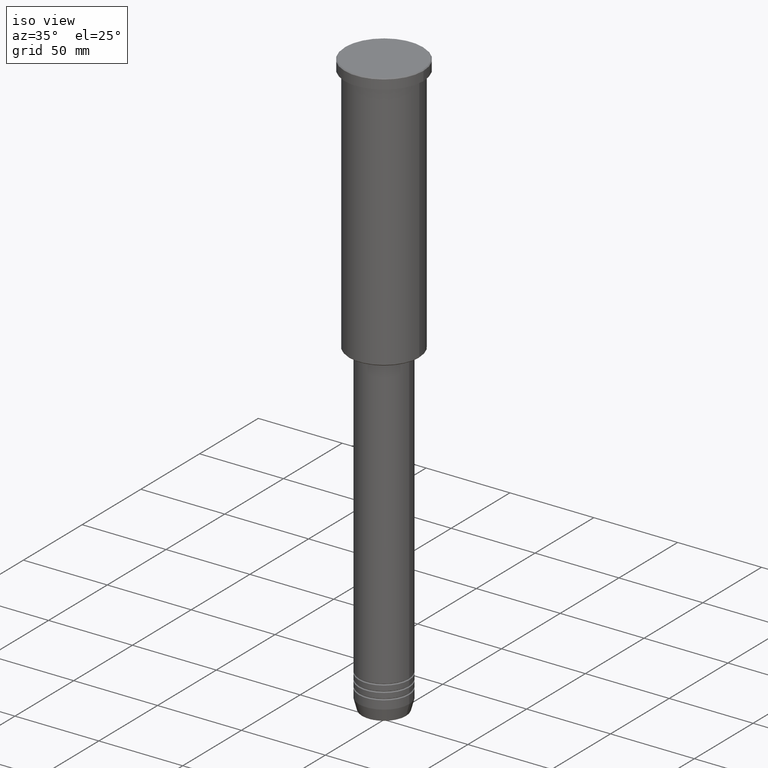
[diagram: clean part render]
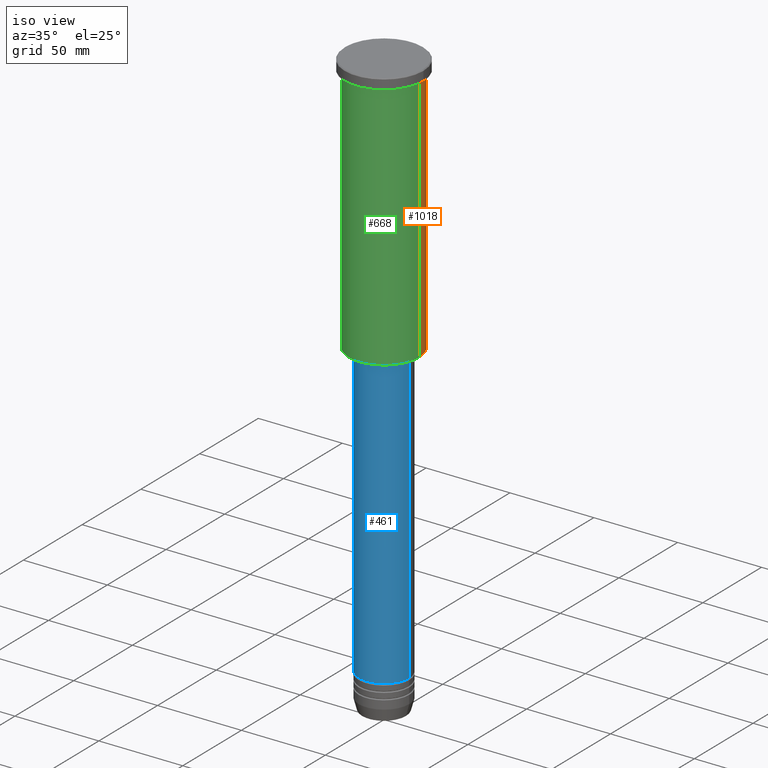
[diagram: same view with three faces highlighted in distinct colors, each labeled with its STEP entity id]
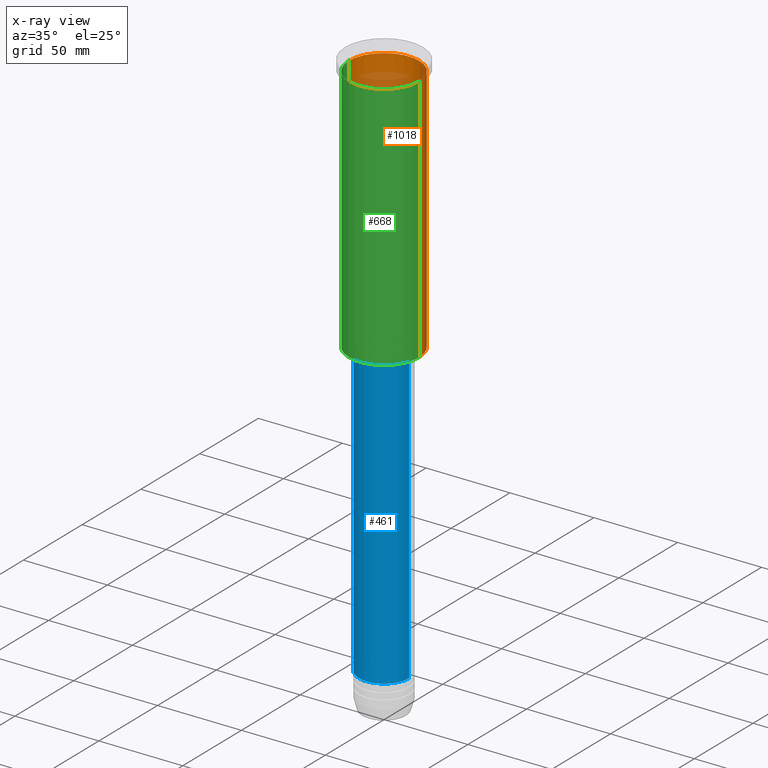
[diagram: x-ray of the same camera — body ghosted, the three highlighted faces saturated]
A machine part, iso view with three faces highlighted in distinct colors.
The next image is the same camera in x-ray (body ghosted, the three faces saturated) — at least one of them is partly hidden behind the body in this view.
Their STEP definitions:

[orange] entity #1018 — the highlighted cylindrical surface (partial cylindrical patch) has radius 21 mm, axis along (-0, -0, 1).
#66 = DIRECTION ( 'NONE',  ( -0.000000000000000000, -0.000000000000000000, 1.000000000000000000 ) ) ;
#100 = DIRECTION ( 'NONE',  ( -1.000000000000000000, 0.000000000000000000, 0.000000000000000000 ) ) ;
#154 = VERTEX_POINT ( 'NONE', #665 ) ;
#171 = VECTOR ( 'NONE', #66, 1000.000000000000000 ) ;
#183 = CARTESIAN_POINT ( 'NONE',  ( 21.00000000000000000, 0.000000000000000000, -155.4999999999999716 ) ) ;
#202 = DIRECTION ( 'NONE',  ( -0.000000000000000000, -0.000000000000000000, 1.000000000000000000 ) ) ;
#241 = AXIS2_PLACEMENT_3D ( 'NONE', #843, #1019, #921 ) ;
#254 = DIRECTION ( 'NONE',  ( -0.000000000000000000, -0.000000000000000000, 1.000000000000000000 ) ) ;
#296 = EDGE_CURVE ( 'NONE', #462, #904, #513, .T. ) ;
#373 = DIRECTION ( 'NONE',  ( -0.000000000000000000, -0.000000000000000000, 1.000000000000000000 ) ) ;
#380 = CIRCLE ( 'NONE', #241, 21.00000000000000000 ) ;
#385 = CARTESIAN_POINT ( 'NONE',  ( 0.000000000000000000, 0.000000000000000000, 0.000000000000000000 ) ) ;
#431 = CARTESIAN_POINT ( 'NONE',  ( 0.000000000000000000, 0.000000000000000000, -155.4999999999999716 ) ) ;
#462 = VERTEX_POINT ( 'NONE', #735 ) ;
#466 = FACE_OUTER_BOUND ( 'NONE', #614, .T. ) ;
#513 = LINE ( 'NONE', #1081, #1074 ) ;
#579 = VERTEX_POINT ( 'NONE', #183 ) ;
#614 = EDGE_LOOP ( 'NONE', ( #1089, #1175, #851, #919 ) ) ;
#665 = CARTESIAN_POINT ( 'NONE',  ( 21.00000000000000000, 0.000000000000000000, -6.999999999999993783 ) ) ;
#735 = CARTESIAN_POINT ( 'NONE',  ( -21.00000000000000000, 2.571758278209441661E-15, -155.4999999999999716 ) ) ;
#739 = DIRECTION ( 'NONE',  ( 1.000000000000000000, 0.000000000000000000, 0.000000000000000000 ) ) ;
#794 = AXIS2_PLACEMENT_3D ( 'NONE', #385, #202, #739 ) ;
#842 = EDGE_CURVE ( 'NONE', #579, #154, #901, .T. ) ;
#843 = CARTESIAN_POINT ( 'NONE',  ( 0.000000000000000000, 0.000000000000000000, -6.999999999999993783 ) ) ;
#851 = ORIENTED_EDGE ( 'NONE', *, *, #1016, .F. ) ;
#873 = AXIS2_PLACEMENT_3D ( 'NONE', #431, #373, #100 ) ;
#901 = LINE ( 'NONE', #986, #171 ) ;
#904 = VERTEX_POINT ( 'NONE', #972 ) ;
#919 = ORIENTED_EDGE ( 'NONE', *, *, #842, .F. ) ;
#921 = DIRECTION ( 'NONE',  ( 1.000000000000000000, 0.000000000000000000, 0.000000000000000000 ) ) ;
#938 = EDGE_CURVE ( 'NONE', #579, #462, #957, .T. ) ;
#957 = CIRCLE ( 'NONE', #873, 21.00000000000000000 ) ;
#972 = CARTESIAN_POINT ( 'NONE',  ( -21.00000000000000000, 2.571758278209441661E-15, -6.999999999999993783 ) ) ;
#986 = CARTESIAN_POINT ( 'NONE',  ( 21.00000000000000000, 0.000000000000000000, 0.000000000000000000 ) ) ;
#1016 = EDGE_CURVE ( 'NONE', #154, #904, #380, .T. ) ;
#1018 = ADVANCED_FACE ( 'NONE', ( #466 ), #1097, .T. ) ;
#1019 = DIRECTION ( 'NONE',  ( -0.000000000000000000, -0.000000000000000000, 1.000000000000000000 ) ) ;
#1074 = VECTOR ( 'NONE', #254, 1000.000000000000000 ) ;
#1081 = CARTESIAN_POINT ( 'NONE',  ( -21.00000000000000000, 2.571758278209441661E-15, 0.000000000000000000 ) ) ;
#1089 = ORIENTED_EDGE ( 'NONE', *, *, #938, .T. ) ;
#1097 = CYLINDRICAL_SURFACE ( 'NONE', #794, 21.00000000000000000 ) ;
#1175 = ORIENTED_EDGE ( 'NONE', *, *, #296, .T. ) ;

[blue] entity #461 — the highlighted cylindrical surface (edge-blend (fillet) strip) has radius 15 mm, axis along (-0, -0, 1).
#34 = FACE_OUTER_BOUND ( 'NONE', #694, .T. ) ;
#36 = CARTESIAN_POINT ( 'NONE',  ( 0.000000000000000000, 0.000000000000000000, -156.9999999999999432 ) ) ;
#45 = AXIS2_PLACEMENT_3D ( 'NONE', #248, #177, #439 ) ;
#52 = EDGE_CURVE ( 'NONE', #564, #374, #454, .T. ) ;
#69 = ORIENTED_EDGE ( 'NONE', *, *, #126, .T. ) ;
#98 = CIRCLE ( 'NONE', #45, 15.00000000000000000 ) ;
#105 = VERTEX_POINT ( 'NONE', #672 ) ;
#110 = CARTESIAN_POINT ( 'NONE',  ( -15.00000000000000000, 1.836970198721029589E-15, 0.000000000000000000 ) ) ;
#126 = EDGE_CURVE ( 'NONE', #105, #374, #483, .T. ) ;
#167 = AXIS2_PLACEMENT_3D ( 'NONE', #36, #310, #1140 ) ;
#177 = DIRECTION ( 'NONE',  ( -0.000000000000000000, -0.000000000000000000, 1.000000000000000000 ) ) ;
#198 = LINE ( 'NONE', #110, #647 ) ;
#210 = CARTESIAN_POINT ( 'NONE',  ( 0.000000000000000000, 0.000000000000000000, 0.000000000000000000 ) ) ;
#248 = CARTESIAN_POINT ( 'NONE',  ( 0.000000000000000000, 0.000000000000000000, -329.9999999999999432 ) ) ;
#273 = ORIENTED_EDGE ( 'NONE', *, *, #52, .F. ) ;
#285 = CARTESIAN_POINT ( 'NONE',  ( -15.00000000000000000, 1.836970198721029589E-15, -156.9999999999999432 ) ) ;
#292 = CARTESIAN_POINT ( 'NONE',  ( 15.00000000000000000, 0.000000000000000000, -156.9999999999999432 ) ) ;
#297 = DIRECTION ( 'NONE',  ( -0.000000000000000000, -0.000000000000000000, 1.000000000000000000 ) ) ;
#307 = CYLINDRICAL_SURFACE ( 'NONE', #532, 15.00000000000000000 ) ;
#310 = DIRECTION ( 'NONE',  ( -0.000000000000000000, -0.000000000000000000, 1.000000000000000000 ) ) ;
#374 = VERTEX_POINT ( 'NONE', #292 ) ;
#407 = DIRECTION ( 'NONE',  ( -0.000000000000000000, -0.000000000000000000, 1.000000000000000000 ) ) ;
#439 = DIRECTION ( 'NONE',  ( 1.000000000000000000, 0.000000000000000000, 0.000000000000000000 ) ) ;
#454 = CIRCLE ( 'NONE', #167, 15.00000000000000000 ) ;
#461 = ADVANCED_FACE ( 'NONE', ( #34 ), #307, .T. ) ;
#483 = LINE ( 'NONE', #495, #891 ) ;
#495 = CARTESIAN_POINT ( 'NONE',  ( 15.00000000000000000, 0.000000000000000000, 0.000000000000000000 ) ) ;
#532 = AXIS2_PLACEMENT_3D ( 'NONE', #210, #297, #846 ) ;
#564 = VERTEX_POINT ( 'NONE', #285 ) ;
#613 = ORIENTED_EDGE ( 'NONE', *, *, #847, .T. ) ;
#635 = ORIENTED_EDGE ( 'NONE', *, *, #967, .F. ) ;
#647 = VECTOR ( 'NONE', #744, 1000.000000000000000 ) ;
#672 = CARTESIAN_POINT ( 'NONE',  ( 15.00000000000000000, 0.000000000000000000, -329.9999999999999432 ) ) ;
#694 = EDGE_LOOP ( 'NONE', ( #635, #613, #69, #273 ) ) ;
#744 = DIRECTION ( 'NONE',  ( -0.000000000000000000, -0.000000000000000000, 1.000000000000000000 ) ) ;
#846 = DIRECTION ( 'NONE',  ( 1.000000000000000000, 0.000000000000000000, 0.000000000000000000 ) ) ;
#847 = EDGE_CURVE ( 'NONE', #1042, #105, #98, .T. ) ;
#891 = VECTOR ( 'NONE', #407, 1000.000000000000000 ) ;
#967 = EDGE_CURVE ( 'NONE', #1042, #564, #198, .T. ) ;
#1022 = CARTESIAN_POINT ( 'NONE',  ( -15.00000000000000000, 1.836970198721029589E-15, -329.9999999999999432 ) ) ;
#1042 = VERTEX_POINT ( 'NONE', #1022 ) ;
#1140 = DIRECTION ( 'NONE',  ( 1.000000000000000000, 0.000000000000000000, 0.000000000000000000 ) ) ;

[green] entity #668 — the highlighted cylindrical surface (partial cylindrical patch) has radius 21 mm, axis along (-0, -0, 1).
#15 = EDGE_LOOP ( 'NONE', ( #829, #764, #651, #1103 ) ) ;
#66 = DIRECTION ( 'NONE',  ( -0.000000000000000000, -0.000000000000000000, 1.000000000000000000 ) ) ;
#118 = DIRECTION ( 'NONE',  ( 1.000000000000000000, 0.000000000000000000, 0.000000000000000000 ) ) ;
#154 = VERTEX_POINT ( 'NONE', #665 ) ;
#171 = VECTOR ( 'NONE', #66, 1000.000000000000000 ) ;
#183 = CARTESIAN_POINT ( 'NONE',  ( 21.00000000000000000, 0.000000000000000000, -155.4999999999999716 ) ) ;
#186 = EDGE_CURVE ( 'NONE', #462, #579, #736, .T. ) ;
#204 = CYLINDRICAL_SURFACE ( 'NONE', #837, 21.00000000000000000 ) ;
#222 = DIRECTION ( 'NONE',  ( 1.000000000000000000, 0.000000000000000000, 0.000000000000000000 ) ) ;
#254 = DIRECTION ( 'NONE',  ( -0.000000000000000000, -0.000000000000000000, 1.000000000000000000 ) ) ;
#296 = EDGE_CURVE ( 'NONE', #462, #904, #513, .T. ) ;
#410 = CARTESIAN_POINT ( 'NONE',  ( 0.000000000000000000, 0.000000000000000000, -155.4999999999999716 ) ) ;
#462 = VERTEX_POINT ( 'NONE', #735 ) ;
#491 = AXIS2_PLACEMENT_3D ( 'NONE', #410, #597, #1124 ) ;
#502 = DIRECTION ( 'NONE',  ( -0.000000000000000000, -0.000000000000000000, 1.000000000000000000 ) ) ;
#513 = LINE ( 'NONE', #1081, #1074 ) ;
#570 = CARTESIAN_POINT ( 'NONE',  ( 0.000000000000000000, 0.000000000000000000, 0.000000000000000000 ) ) ;
#579 = VERTEX_POINT ( 'NONE', #183 ) ;
#586 = AXIS2_PLACEMENT_3D ( 'NONE', #688, #502, #222 ) ;
#597 = DIRECTION ( 'NONE',  ( -0.000000000000000000, -0.000000000000000000, 1.000000000000000000 ) ) ;
#651 = ORIENTED_EDGE ( 'NONE', *, *, #842, .T. ) ;
#654 = FACE_OUTER_BOUND ( 'NONE', #15, .T. ) ;
#665 = CARTESIAN_POINT ( 'NONE',  ( 21.00000000000000000, 0.000000000000000000, -6.999999999999993783 ) ) ;
#668 = ADVANCED_FACE ( 'NONE', ( #654 ), #204, .T. ) ;
#682 = CIRCLE ( 'NONE', #586, 21.00000000000000000 ) ;
#688 = CARTESIAN_POINT ( 'NONE',  ( 0.000000000000000000, 0.000000000000000000, -6.999999999999993783 ) ) ;
#735 = CARTESIAN_POINT ( 'NONE',  ( -21.00000000000000000, 2.571758278209441661E-15, -155.4999999999999716 ) ) ;
#736 = CIRCLE ( 'NONE', #491, 21.00000000000000000 ) ;
#764 = ORIENTED_EDGE ( 'NONE', *, *, #186, .T. ) ;
#829 = ORIENTED_EDGE ( 'NONE', *, *, #296, .F. ) ;
#837 = AXIS2_PLACEMENT_3D ( 'NONE', #570, #1024, #118 ) ;
#842 = EDGE_CURVE ( 'NONE', #579, #154, #901, .T. ) ;
#901 = LINE ( 'NONE', #986, #171 ) ;
#904 = VERTEX_POINT ( 'NONE', #972 ) ;
#972 = CARTESIAN_POINT ( 'NONE',  ( -21.00000000000000000, 2.571758278209441661E-15, -6.999999999999993783 ) ) ;
#986 = CARTESIAN_POINT ( 'NONE',  ( 21.00000000000000000, 0.000000000000000000, 0.000000000000000000 ) ) ;
#1024 = DIRECTION ( 'NONE',  ( -0.000000000000000000, -0.000000000000000000, 1.000000000000000000 ) ) ;
#1074 = VECTOR ( 'NONE', #254, 1000.000000000000000 ) ;
#1081 = CARTESIAN_POINT ( 'NONE',  ( -21.00000000000000000, 2.571758278209441661E-15, 0.000000000000000000 ) ) ;
#1103 = ORIENTED_EDGE ( 'NONE', *, *, #1134, .F. ) ;
#1124 = DIRECTION ( 'NONE',  ( -1.000000000000000000, 0.000000000000000000, 0.000000000000000000 ) ) ;
#1134 = EDGE_CURVE ( 'NONE', #904, #154, #682, .T. ) ;